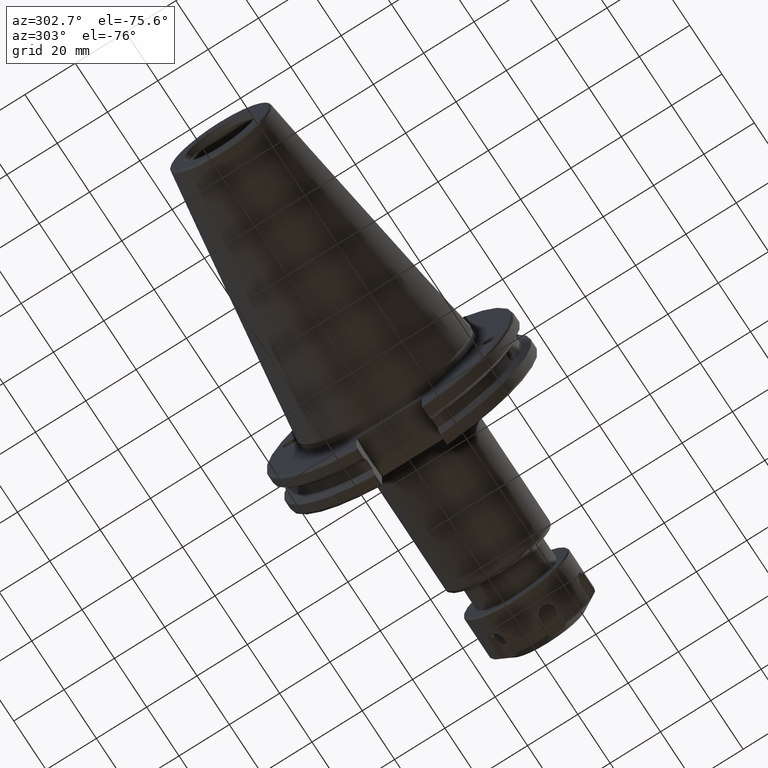
[diagram: clean part render]
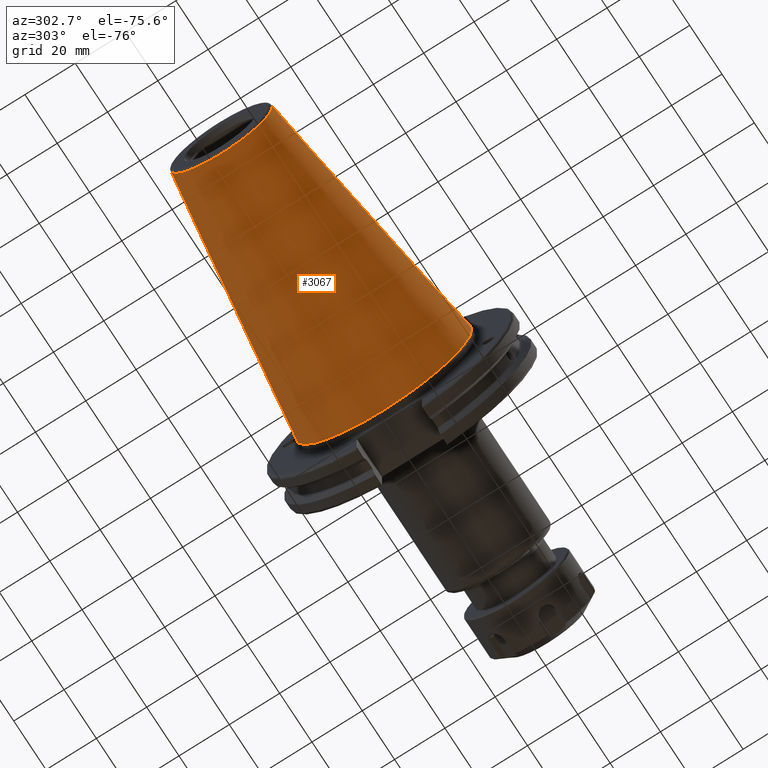
[diagram: same view with one face highlighted and labeled with its STEP entity id]
A machine part, auxiliary view. The second image highlights one B-rep face of the part: STEP entity #3067.
In plain terms, the highlighted conical surface has half-angle 8.297 deg.
Its self-contained STEP definition (entity closure, byte-faithful):
#155=CONICAL_SURFACE('',#3400,27.5166666666666,0.14481249823894);
#347=FACE_OUTER_BOUND('',#535,.T.);
#535=EDGE_LOOP('',(#2392,#2393,#2394,#2395,#2396,#2397,#2398));
#727=LINE('',#5412,#913);
#913=VECTOR('',#3992,27.5166666666666);
#1116=CIRCLE('',#3391,20.233121911427);
#1117=CIRCLE('',#3392,20.233121911427);
#1121=CIRCLE('',#3396,20.233121911427);
#1124=CIRCLE('',#3401,34.925);
#1125=CIRCLE('',#3402,34.925);
#1372=VERTEX_POINT('',#5391);
#1373=VERTEX_POINT('',#5392);
#1374=VERTEX_POINT('',#5394);
#1379=VERTEX_POINT('',#5408);
#1380=VERTEX_POINT('',#5409);
#1749=EDGE_CURVE('',#1372,#1373,#1116,.T.);
#1750=EDGE_CURVE('',#1373,#1374,#1117,.T.);
#1754=EDGE_CURVE('',#1374,#1372,#1121,.T.);
#1757=EDGE_CURVE('',#1379,#1380,#1124,.T.);
#1758=EDGE_CURVE('',#1380,#1379,#1125,.T.);
#1759=EDGE_CURVE('',#1380,#1373,#727,.T.);
#2392=ORIENTED_EDGE('',*,*,#1757,.F.);
#2393=ORIENTED_EDGE('',*,*,#1758,.F.);
#2394=ORIENTED_EDGE('',*,*,#1759,.T.);
#2395=ORIENTED_EDGE('',*,*,#1749,.F.);
#2396=ORIENTED_EDGE('',*,*,#1754,.F.);
#2397=ORIENTED_EDGE('',*,*,#1750,.F.);
#2398=ORIENTED_EDGE('',*,*,#1759,.F.);
#3067=ADVANCED_FACE('',(#347),#155,.T.);
#3391=AXIS2_PLACEMENT_3D('',#5393,#3968,#3969);
#3392=AXIS2_PLACEMENT_3D('',#5395,#3970,#3971);
#3396=AXIS2_PLACEMENT_3D('',#5401,#3978,#3979);
#3400=AXIS2_PLACEMENT_3D('',#5407,#3986,#3987);
#3401=AXIS2_PLACEMENT_3D('',#5410,#3988,#3989);
#3402=AXIS2_PLACEMENT_3D('',#5411,#3990,#3991);
#3968=DIRECTION('center_axis',(-1.,0.,0.));
#3969=DIRECTION('ref_axis',(0.,-1.,3.06161699786838E-17));
#3970=DIRECTION('center_axis',(-1.,0.,0.));
#3971=DIRECTION('ref_axis',(0.,-1.,3.06161699786838E-17));
#3978=DIRECTION('center_axis',(-1.,0.,0.));
#3979=DIRECTION('ref_axis',(0.,-1.,3.06161699786838E-17));
#3986=DIRECTION('center_axis',(1.,0.,0.));
#3987=DIRECTION('ref_axis',(0.,1.,0.));
#3988=DIRECTION('center_axis',(1.,0.,0.));
#3989=DIRECTION('ref_axis',(0.,0.,-1.));
#3990=DIRECTION('center_axis',(1.,0.,0.));
#3991=DIRECTION('ref_axis',(0.,0.,-1.));
#3992=DIRECTION('',(-0.989532981063281,0.144306893071729,1.76724974695192E-17));
#5391=CARTESIAN_POINT('',(-100.744306893072,20.233121911427,-6.19460699639681E-15));
#5392=CARTESIAN_POINT('',(-100.744306893072,-20.233121911427,-2.47784279855872E-15));
#5393=CARTESIAN_POINT('Origin',(-100.744306893072,0.,-3.09730349819841E-15));
#5394=CARTESIAN_POINT('',(-100.744306893072,-2.47784279855872E-15,20.233121911427));
#5395=CARTESIAN_POINT('Origin',(-100.744306893072,0.,-3.09730349819841E-15));
#5401=CARTESIAN_POINT('Origin',(-100.744306893072,0.,-3.09730349819841E-15));
#5407=CARTESIAN_POINT('Origin',(-50.8,0.,0.));
#5408=CARTESIAN_POINT('',(0.,34.925,0.));
#5409=CARTESIAN_POINT('',(-8.88178419700125E-15,-34.925,-4.27707894602213E-15));
#5410=CARTESIAN_POINT('Origin',(0.,0.,0.));
#5411=CARTESIAN_POINT('Origin',(0.,0.,0.));
#5412=CARTESIAN_POINT('',(-50.8,-27.5166666666666,-3.3698197756538E-15));